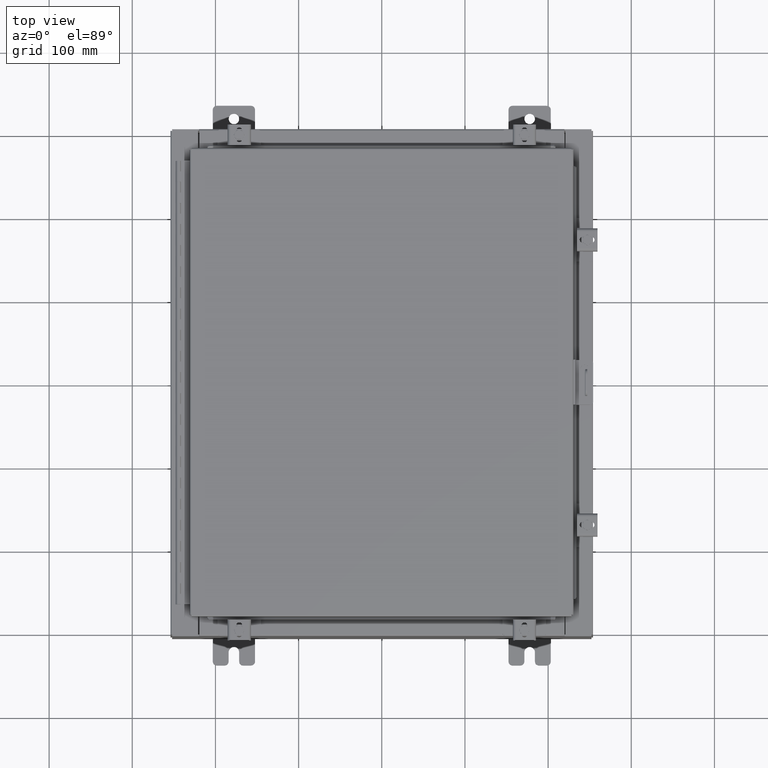
[diagram: clean part render]
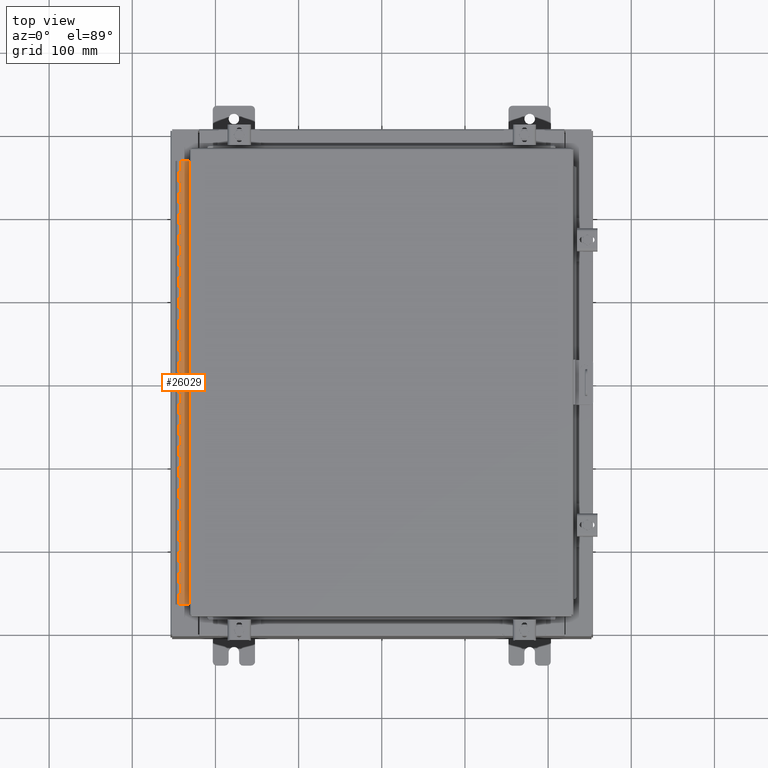
[diagram: same view with one face highlighted and labeled with its STEP entity id]
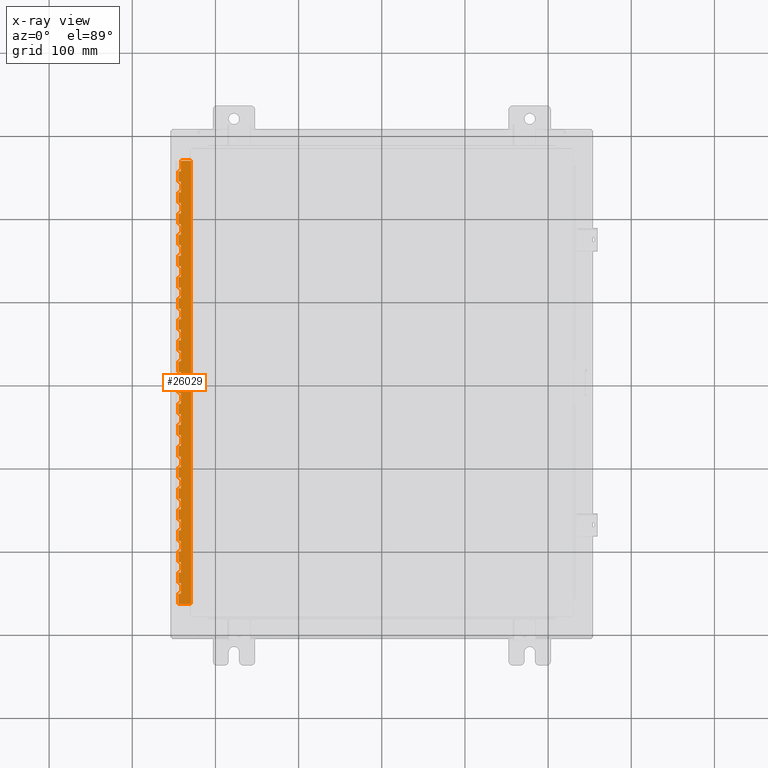
[diagram: x-ray of the same camera — body ghosted, the highlighted face saturated]
A machine part, top view. The second image highlights one B-rep face of the part: STEP entity #26029.
The next image is the same camera in x-ray: the body ghosted, the highlighted face saturated — about 0% of this face is hidden behind the body in this view.
In plain terms, the highlighted planar face has unit normal (-0, -0, 1).
Its self-contained STEP definition (entity closure, byte-faithful):
#103 = DIRECTION ( 'NONE',  ( 0.0000000000000000000, 0.0000000000000000000, 1.000000000000000000 ) ) ;
#155 = VECTOR ( 'NONE', #21715, 39.37007874015748100 ) ;
#177 = VERTEX_POINT ( 'NONE', #19928 ) ;
#197 = CARTESIAN_POINT ( 'NONE',  ( -0.6869999999999982800, 0.5504999999999997700, -1.499999999999999800 ) ) ;
#227 = ORIENTED_EDGE ( 'NONE', *, *, #23551, .F. ) ;
#271 = CARTESIAN_POINT ( 'NONE',  ( -0.6869999999999978300, 0.6754999999999996600, -21.00000000000000000 ) ) ;
#292 = CARTESIAN_POINT ( 'NONE',  ( -0.6869999999999978300, 0.6754999999999996600, -21.00000000000000000 ) ) ;
#294 = ORIENTED_EDGE ( 'NONE', *, *, #26899, .F. ) ;
#338 = DIRECTION ( 'NONE',  ( 3.389037039080723100E-015, 1.000000000000000000, -0.0000000000000000000 ) ) ;
#473 = VERTEX_POINT ( 'NONE', #8911 ) ;
#476 = EDGE_CURVE ( 'NONE', #27249, #29957, #27315, .T. ) ;
#521 = DIRECTION ( 'NONE',  ( 3.389037039080723100E-015, 1.000000000000000000, -0.0000000000000000000 ) ) ;
#579 = CARTESIAN_POINT ( 'NONE',  ( -0.6869999999999982800, 0.5504999999999997700, -6.499999999999999100 ) ) ;
#584 = LINE ( 'NONE', #12145, #1331 ) ;
#655 = EDGE_CURVE ( 'NONE', #24207, #15275, #23053, .T. ) ;
#741 = CARTESIAN_POINT ( 'NONE',  ( -0.6869999999999982800, 0.5504999999999997700, -8.500000000000000000 ) ) ;
#754 = CARTESIAN_POINT ( 'NONE',  ( -0.6869999999999998300, 0.07549999999999991400, -21.00000000000000000 ) ) ;
#755 = DIRECTION ( 'NONE',  ( 0.0000000000000000000, -0.0000000000000000000, -1.000000000000000000 ) ) ;
#764 = ORIENTED_EDGE ( 'NONE', *, *, #11160, .F. ) ;
#861 = CARTESIAN_POINT ( 'NONE',  ( -0.6870000000000022800, -0.6245000000000003900, -21.00000000000000000 ) ) ;
#899 = VECTOR ( 'NONE', #31976, 39.37007874015748100 ) ;
#901 = VECTOR ( 'NONE', #4364, 39.37007874015748100 ) ;
#905 = CARTESIAN_POINT ( 'NONE',  ( -0.6870000000000022800, -0.6245000000000003900, -21.00000000000000000 ) ) ;
#917 = CARTESIAN_POINT ( 'NONE',  ( -0.6869999999999982800, 0.5504999999999997700, -5.500000000000000000 ) ) ;
#995 = DIRECTION ( 'NONE',  ( 0.0000000000000000000, 0.0000000000000000000, 1.000000000000000000 ) ) ;
#1041 = VECTOR ( 'NONE', #4501, 39.37007874015748100 ) ;
#1044 = CARTESIAN_POINT ( 'NONE',  ( -0.6869999999999978300, 0.6754999999999996600, -12.99999999999999800 ) ) ;
#1079 = ORIENTED_EDGE ( 'NONE', *, *, #27322, .F. ) ;
#1127 = EDGE_CURVE ( 'NONE', #15758, #23292, #19465, .T. ) ;
#1142 = DIRECTION ( 'NONE',  ( 0.0000000000000000000, -0.0000000000000000000, -1.000000000000000000 ) ) ;
#1155 = CARTESIAN_POINT ( 'NONE',  ( -0.6869999999999978300, 0.6754999999999996600, -21.00000000000000000 ) ) ;
#1194 = CARTESIAN_POINT ( 'NONE',  ( -0.6869999999999973900, 0.8004999999999995500, -14.99999999999999800 ) ) ;
#1223 = CARTESIAN_POINT ( 'NONE',  ( -0.6869999999999978300, 0.6754999999999996600, 0.0000000000000000000 ) ) ;
#1296 = LINE ( 'NONE', #25357, #28090 ) ;
#1315 = VERTEX_POINT ( 'NONE', #26637 ) ;
#1331 = VECTOR ( 'NONE', #12102, 39.37007874015748100 ) ;
#1394 = VECTOR ( 'NONE', #12137, 39.37007874015748100 ) ;
#1480 = CARTESIAN_POINT ( 'NONE',  ( -0.6869999999999978300, 0.6754999999999996600, -21.00000000000000000 ) ) ;
#1504 = LINE ( 'NONE', #23699, #4052 ) ;
#1577 = DIRECTION ( 'NONE',  ( 0.0000000000000000000, 0.0000000000000000000, 1.000000000000000000 ) ) ;
#1624 = CARTESIAN_POINT ( 'NONE',  ( -0.6869999999999982800, 0.5504999999999997700, -21.00000000000000000 ) ) ;
#1808 = EDGE_CURVE ( 'NONE', #30651, #2027, #14689, .T. ) ;
#1827 = DIRECTION ( 'NONE',  ( 0.0000000000000000000, 0.0000000000000000000, 1.000000000000000000 ) ) ;
#1835 = DIRECTION ( 'NONE',  ( -3.389037039080723100E-015, -1.000000000000000000, 0.0000000000000000000 ) ) ;
#1843 = CARTESIAN_POINT ( 'NONE',  ( -0.6869999999999982800, 0.5504999999999997700, -10.50000000000000000 ) ) ;
#1970 = LINE ( 'NONE', #30358, #6411 ) ;
#1983 = ORIENTED_EDGE ( 'NONE', *, *, #18855, .F. ) ;
#2001 = VECTOR ( 'NONE', #30771, 39.37007874015748100 ) ;
#2027 = VERTEX_POINT ( 'NONE', #28097 ) ;
#2119 = VERTEX_POINT ( 'NONE', #26179 ) ;
#2218 = CARTESIAN_POINT ( 'NONE',  ( -0.6869999999999982800, 0.5504999999999997700, -6.499999999999999100 ) ) ;
#2259 = CARTESIAN_POINT ( 'NONE',  ( -0.6869999999999998300, 0.07549999999999991400, 0.0000000000000000000 ) ) ;
#2388 = VERTEX_POINT ( 'NONE', #32848 ) ;
#2395 = LINE ( 'NONE', #22267, #15820 ) ;
#2396 = LINE ( 'NONE', #24946, #10252 ) ;
#2429 = ORIENTED_EDGE ( 'NONE', *, *, #17257, .F. ) ;
#2489 = VECTOR ( 'NONE', #28837, 39.37007874015748100 ) ;
#2554 = ORIENTED_EDGE ( 'NONE', *, *, #13173, .T. ) ;
#2556 = CARTESIAN_POINT ( 'NONE',  ( -0.6869999999999978300, 0.6754999999999996600, -3.500000000000000000 ) ) ;
#2570 = VECTOR ( 'NONE', #22518, 39.37007874015748100 ) ;
#2625 = VERTEX_POINT ( 'NONE', #20589 ) ;
#2671 = VECTOR ( 'NONE', #28853, 39.37007874015748100 ) ;
#2811 = ORIENTED_EDGE ( 'NONE', *, *, #16131, .T. ) ;
#2874 = LINE ( 'NONE', #5028, #155 ) ;
#2909 = CARTESIAN_POINT ( 'NONE',  ( -0.6869999999999982800, 0.5504999999999997700, -18.50000000000000000 ) ) ;
#2913 = ORIENTED_EDGE ( 'NONE', *, *, #7661, .F. ) ;
#3035 = CARTESIAN_POINT ( 'NONE',  ( -0.6869999999999973900, 0.8004999999999995500, -5.000000000000000000 ) ) ;
#3039 = VERTEX_POINT ( 'NONE', #3406 ) ;
#3114 = VERTEX_POINT ( 'NONE', #30404 ) ;
#3137 = DIRECTION ( 'NONE',  ( 0.0000000000000000000, 0.0000000000000000000, 1.000000000000000000 ) ) ;
#3182 = VERTEX_POINT ( 'NONE', #197 ) ;
#3252 = ORIENTED_EDGE ( 'NONE', *, *, #13641, .T. ) ;
#3406 = CARTESIAN_POINT ( 'NONE',  ( -0.6869999999999982800, 0.5504999999999997700, -12.49999999999999800 ) ) ;
#3452 = VERTEX_POINT ( 'NONE', #18357 ) ;
#3458 = LINE ( 'NONE', #30522, #16058 ) ;
#3484 = DIRECTION ( 'NONE',  ( 0.0000000000000000000, 0.0000000000000000000, 1.000000000000000000 ) ) ;
#3485 = VERTEX_POINT ( 'NONE', #7197 ) ;
#3496 = CARTESIAN_POINT ( 'NONE',  ( -0.6869999999999973900, 0.8004999999999995500, -10.00000000000000000 ) ) ;
#3526 = VECTOR ( 'NONE', #11968, 39.37007874015748100 ) ;
#3589 = ORIENTED_EDGE ( 'NONE', *, *, #9829, .T. ) ;
#3774 = LINE ( 'NONE', #15727, #10103 ) ;
#3916 = DIRECTION ( 'NONE',  ( 0.0000000000000000000, -0.0000000000000000000, -1.000000000000000000 ) ) ;
#3956 = LINE ( 'NONE', #29157, #1041 ) ;
#3970 = VECTOR ( 'NONE', #24214, 39.37007874015748100 ) ;
#3996 = LINE ( 'NONE', #18540, #17862 ) ;
#4032 = CARTESIAN_POINT ( 'NONE',  ( -0.6869999999999982800, 0.5504999999999997700, -19.50000000000000000 ) ) ;
#4052 = VECTOR ( 'NONE', #10480, 39.37007874015748100 ) ;
#4106 = LINE ( 'NONE', #8319, #20891 ) ;
#4198 = ORIENTED_EDGE ( 'NONE', *, *, #26488, .F. ) ;
#4339 = DIRECTION ( 'NONE',  ( 0.0000000000000000000, 0.0000000000000000000, 1.000000000000000000 ) ) ;
#4364 = DIRECTION ( 'NONE',  ( 3.389037039080723100E-015, 1.000000000000000000, -0.0000000000000000000 ) ) ;
#4424 = ORIENTED_EDGE ( 'NONE', *, *, #32511, .T. ) ;
#4501 = DIRECTION ( 'NONE',  ( 0.0000000000000000000, 0.0000000000000000000, 1.000000000000000000 ) ) ;
#4553 = VERTEX_POINT ( 'NONE', #20087 ) ;
#4615 = EDGE_CURVE ( 'NONE', #24120, #7231, #8847, .T. ) ;
#4660 = VECTOR ( 'NONE', #7715, 39.37007874015748100 ) ;
#4751 = VECTOR ( 'NONE', #17650, 39.37007874015748100 ) ;
#4775 = CARTESIAN_POINT ( 'NONE',  ( -0.6869999999999978300, 0.6754999999999996600, -16.50000000000000000 ) ) ;
#4901 = ORIENTED_EDGE ( 'NONE', *, *, #8170, .F. ) ;
#4940 = VERTEX_POINT ( 'NONE', #20583 ) ;
#4946 = LINE ( 'NONE', #1194, #9998 ) ;
#4969 = LINE ( 'NONE', #29337, #4660 ) ;
#5028 = CARTESIAN_POINT ( 'NONE',  ( -0.6869999999999973900, 0.8004999999999995500, -17.00000000000000000 ) ) ;
#5088 = VERTEX_POINT ( 'NONE', #6546 ) ;
#5136 = VECTOR ( 'NONE', #31008, 39.37007874015748100 ) ;
#5153 = VERTEX_POINT ( 'NONE', #28402 ) ;
#5328 = LINE ( 'NONE', #19929, #18150 ) ;
#5429 = CARTESIAN_POINT ( 'NONE',  ( -0.6869999999999978300, 0.6754999999999996600, -14.99999999999999800 ) ) ;
#5547 = DIRECTION ( 'NONE',  ( 3.389037039080723100E-015, 1.000000000000000000, -0.0000000000000000000 ) ) ;
#5668 = LINE ( 'NONE', #19227, #8849 ) ;
#5683 = CARTESIAN_POINT ( 'NONE',  ( -0.6869999999999973900, 0.8004999999999995500, -8.000000000000000000 ) ) ;
#5707 = DIRECTION ( 'NONE',  ( 3.389037039080723100E-015, 1.000000000000000000, -0.0000000000000000000 ) ) ;
#5772 = LINE ( 'NONE', #19001, #23694 ) ;
#5774 = ORIENTED_EDGE ( 'NONE', *, *, #11699, .F. ) ;
#5868 = ORIENTED_EDGE ( 'NONE', *, *, #17879, .F. ) ;
#5882 = CARTESIAN_POINT ( 'NONE',  ( -0.6869999999999973900, 0.8004999999999995500, -20.00000000000000000 ) ) ;
#5957 = CARTESIAN_POINT ( 'NONE',  ( -0.6869999999999978300, 0.6754999999999996600, -14.49999999999999800 ) ) ;
#5995 = ORIENTED_EDGE ( 'NONE', *, *, #476, .T. ) ;
#6089 = CARTESIAN_POINT ( 'NONE',  ( -0.6869999999999978300, 0.6754999999999996600, -21.00000000000000000 ) ) ;
#6123 = LINE ( 'NONE', #1155, #11992 ) ;
#6152 = VERTEX_POINT ( 'NONE', #14431 ) ;
#6319 = VERTEX_POINT ( 'NONE', #15531 ) ;
#6376 = EDGE_CURVE ( 'NONE', #20230, #24756, #28969, .T. ) ;
#6407 = CARTESIAN_POINT ( 'NONE',  ( -0.6869999999999978300, 0.6754999999999996600, -6.000000000000000900 ) ) ;
#6411 = VECTOR ( 'NONE', #5707, 39.37007874015748100 ) ;
#6546 = CARTESIAN_POINT ( 'NONE',  ( -0.6869999999999978300, 0.6754999999999996600, -17.99999999999999600 ) ) ;
#6556 = VERTEX_POINT ( 'NONE', #1223 ) ;
#6694 = CARTESIAN_POINT ( 'NONE',  ( -0.6869999999999982800, 0.5504999999999997700, -8.000000000000000000 ) ) ;
#6740 = VECTOR ( 'NONE', #28791, 39.37007874015748100 ) ;
#7035 = DIRECTION ( 'NONE',  ( 0.0000000000000000000, -0.0000000000000000000, -1.000000000000000000 ) ) ;
#7055 = EDGE_CURVE ( 'NONE', #11393, #6152, #29419, .T. ) ;
#7059 = CARTESIAN_POINT ( 'NONE',  ( -0.6869999999999978300, 0.6754999999999996600, -5.500000000000000000 ) ) ;
#7067 = VECTOR ( 'NONE', #28575, 39.37007874015748100 ) ;
#7070 = ORIENTED_EDGE ( 'NONE', *, *, #26441, .F. ) ;
#7089 = VECTOR ( 'NONE', #24545, 39.37007874015748100 ) ;
#7104 = LINE ( 'NONE', #15929, #12297 ) ;
#7197 = CARTESIAN_POINT ( 'NONE',  ( -0.6869999999999978300, 0.6754999999999996600, -11.50000000000000000 ) ) ;
#7224 = VERTEX_POINT ( 'NONE', #23065 ) ;
#7231 = VERTEX_POINT ( 'NONE', #19324 ) ;
#7246 = ORIENTED_EDGE ( 'NONE', *, *, #655, .T. ) ;
#7273 = DIRECTION ( 'NONE',  ( 3.369016658928398200E-015, 1.000000000000000000, 0.0000000000000000000 ) ) ;
#7318 = ORIENTED_EDGE ( 'NONE', *, *, #11862, .F. ) ;
#7372 = CARTESIAN_POINT ( 'NONE',  ( -0.6869999999999982800, 0.5504999999999997700, -11.99999999999999800 ) ) ;
#7380 = CARTESIAN_POINT ( 'NONE',  ( -0.6869999999999978300, 0.6754999999999996600, -21.00000000000000000 ) ) ;
#7413 = VERTEX_POINT ( 'NONE', #18842 ) ;
#7445 = VERTEX_POINT ( 'NONE', #12876 ) ;
#7452 = CARTESIAN_POINT ( 'NONE',  ( -0.6869999999999978300, 0.6754999999999996600, -9.000000000000000000 ) ) ;
#7530 = DIRECTION ( 'NONE',  ( 0.0000000000000000000, -0.0000000000000000000, -1.000000000000000000 ) ) ;
#7661 = EDGE_CURVE ( 'NONE', #8018, #22218, #30250, .T. ) ;
#7715 = DIRECTION ( 'NONE',  ( 0.0000000000000000000, 0.0000000000000000000, 1.000000000000000000 ) ) ;
#7733 = EDGE_CURVE ( 'NONE', #2625, #177, #28663, .T. ) ;
#7749 = VECTOR ( 'NONE', #15839, 39.37007874015748100 ) ;
#7819 = VECTOR ( 'NONE', #27204, 39.37007874015748100 ) ;
#7854 = VERTEX_POINT ( 'NONE', #4775 ) ;
#7940 = ORIENTED_EDGE ( 'NONE', *, *, #29884, .F. ) ;
#7958 = ORIENTED_EDGE ( 'NONE', *, *, #15445, .T. ) ;
#8009 = CARTESIAN_POINT ( 'NONE',  ( -0.6869999999999978300, 0.6754999999999996600, -21.00000000000000000 ) ) ;
#8010 = ORIENTED_EDGE ( 'NONE', *, *, #16585, .T. ) ;
#8018 = VERTEX_POINT ( 'NONE', #2218 ) ;
#8038 = CARTESIAN_POINT ( 'NONE',  ( -0.6869999999999982800, 0.5504999999999997700, -9.500000000000000000 ) ) ;
#8104 = CARTESIAN_POINT ( 'NONE',  ( -0.6869999999999978300, 0.6754999999999996600, -21.00000000000000000 ) ) ;
#8129 = EDGE_CURVE ( 'NONE', #32894, #2027, #31461, .T. ) ;
#8170 = EDGE_CURVE ( 'NONE', #7413, #9553, #9248, .T. ) ;
#8194 = VERTEX_POINT ( 'NONE', #1843 ) ;
#8198 = CARTESIAN_POINT ( 'NONE',  ( -0.6869999999999973900, 0.8004999999999995500, -4.000000000000000000 ) ) ;
#8229 = EDGE_CURVE ( 'NONE', #28632, #23440, #3956, .T. ) ;
#8232 = ORIENTED_EDGE ( 'NONE', *, *, #12887, .F. ) ;
#8319 = CARTESIAN_POINT ( 'NONE',  ( -0.6869999999999978300, 0.6754999999999996600, -21.00000000000000000 ) ) ;
#8548 = ORIENTED_EDGE ( 'NONE', *, *, #22570, .F. ) ;
#8570 = EDGE_CURVE ( 'NONE', #9468, #22621, #2395, .T. ) ;
#8594 = EDGE_CURVE ( 'NONE', #7231, #32486, #5668, .T. ) ;
#8666 = DIRECTION ( 'NONE',  ( 0.0000000000000000000, -0.0000000000000000000, -1.000000000000000000 ) ) ;
#8773 = CARTESIAN_POINT ( 'NONE',  ( -0.6869999999999982800, 0.5504999999999997700, -12.99999999999999800 ) ) ;
#8805 = CARTESIAN_POINT ( 'NONE',  ( -0.6869999999999978300, 0.6754999999999996600, -10.50000000000000000 ) ) ;
#8847 = LINE ( 'NONE', #14289, #32079 ) ;
#8849 = VECTOR ( 'NONE', #20881, 39.37007874015748100 ) ;
#8898 = DIRECTION ( 'NONE',  ( 3.389037039080723100E-015, 1.000000000000000000, -0.0000000000000000000 ) ) ;
#8911 = CARTESIAN_POINT ( 'NONE',  ( -0.6869999999999982800, 0.5504999999999997700, -14.49999999999999800 ) ) ;
#8975 = ORIENTED_EDGE ( 'NONE', *, *, #26113, .F. ) ;
#9037 = LINE ( 'NONE', #8104, #25918 ) ;
#9058 = ORIENTED_EDGE ( 'NONE', *, *, #4615, .F. ) ;
#9241 = VERTEX_POINT ( 'NONE', #1624 ) ;
#9248 = LINE ( 'NONE', #917, #29546 ) ;
#9256 = CARTESIAN_POINT ( 'NONE',  ( -0.6869999999999982800, 0.5504999999999997700, -7.499999999999999100 ) ) ;
#9427 = ORIENTED_EDGE ( 'NONE', *, *, #26851, .F. ) ;
#9468 = VERTEX_POINT ( 'NONE', #32094 ) ;
#9553 = VERTEX_POINT ( 'NONE', #16702 ) ;
#9672 = CARTESIAN_POINT ( 'NONE',  ( -0.6869999999999982800, 0.5504999999999997700, -13.50000000000000000 ) ) ;
#9689 = EDGE_CURVE ( 'NONE', #30834, #5088, #6123, .T. ) ;
#9701 = VECTOR ( 'NONE', #30951, 39.37007874015748100 ) ;
#9714 = VERTEX_POINT ( 'NONE', #754 ) ;
#9829 = EDGE_CURVE ( 'NONE', #14590, #27558, #16048, .T. ) ;
#9856 = VECTOR ( 'NONE', #17283, 39.37007874015748100 ) ;
#9864 = EDGE_CURVE ( 'NONE', #15526, #4940, #22561, .T. ) ;
#9898 = VERTEX_POINT ( 'NONE', #13029 ) ;
#9899 = LINE ( 'NONE', #8198, #31590 ) ;
#9943 = VECTOR ( 'NONE', #10141, 39.37007874015748100 ) ;
#9998 = VECTOR ( 'NONE', #26348, 39.37007874015748100 ) ;
#10034 = EDGE_CURVE ( 'NONE', #31901, #15179, #22475, .T. ) ;
#10103 = VECTOR ( 'NONE', #26129, 39.37007874015748100 ) ;
#10141 = DIRECTION ( 'NONE',  ( 0.0000000000000000000, -0.0000000000000000000, -1.000000000000000000 ) ) ;
#10252 = VECTOR ( 'NONE', #16019, 39.37007874015748100 ) ;
#10273 = VERTEX_POINT ( 'NONE', #22455 ) ;
#10362 = ORIENTED_EDGE ( 'NONE', *, *, #17196, .T. ) ;
#10393 = CARTESIAN_POINT ( 'NONE',  ( -0.6869999999999973900, 0.8004999999999995500, -3.500000000000000000 ) ) ;
#10437 = DIRECTION ( 'NONE',  ( -3.389037039080723100E-015, -1.000000000000000000, 0.0000000000000000000 ) ) ;
#10480 = DIRECTION ( 'NONE',  ( -3.389037039080723100E-015, -1.000000000000000000, 0.0000000000000000000 ) ) ;
#10582 = LINE ( 'NONE', #2909, #7749 ) ;
#10644 = LINE ( 'NONE', #24612, #30208 ) ;
#10683 = EDGE_CURVE ( 'NONE', #26767, #28218, #4106, .T. ) ;
#10697 = CARTESIAN_POINT ( 'NONE',  ( -0.6869999999999982800, 0.5504999999999997700, -19.50000000000000000 ) ) ;
#10715 = CARTESIAN_POINT ( 'NONE',  ( -0.6869999999999982800, 0.5504999999999997700, -0.5000000000000000000 ) ) ;
#10738 = LINE ( 'NONE', #15128, #7089 ) ;
#10769 = CARTESIAN_POINT ( 'NONE',  ( -0.6869999999999982800, 0.5504999999999997700, -2.000000000000000000 ) ) ;
#10786 = DIRECTION ( 'NONE',  ( -3.389037039080723100E-015, -1.000000000000000000, 0.0000000000000000000 ) ) ;
#10952 = VERTEX_POINT ( 'NONE', #24204 ) ;
#11077 = EDGE_CURVE ( 'NONE', #31341, #31901, #24258, .T. ) ;
#11118 = FACE_OUTER_BOUND ( 'NONE', #30109, .T. ) ;
#11120 = CARTESIAN_POINT ( 'NONE',  ( -0.6869999999999982800, 0.5504999999999997700, -7.000000000000000000 ) ) ;
#11131 = CARTESIAN_POINT ( 'NONE',  ( -0.6869999999999973900, 0.8004999999999995500, -14.49999999999999800 ) ) ;
#11160 = EDGE_CURVE ( 'NONE', #7224, #21249, #11725, .T. ) ;
#11191 = EDGE_CURVE ( 'NONE', #7445, #4940, #12824, .T. ) ;
#11253 = CARTESIAN_POINT ( 'NONE',  ( -0.6869999999999978300, 0.6754999999999996600, -0.5000000000000000000 ) ) ;
#11277 = CARTESIAN_POINT ( 'NONE',  ( -0.6869999999999978300, 0.6754999999999996600, -2.000000000000000000 ) ) ;
#11296 = CARTESIAN_POINT ( 'NONE',  ( -0.6869999999999978300, 0.6754999999999996600, -21.00000000000000000 ) ) ;
#11300 = CARTESIAN_POINT ( 'NONE',  ( -0.6869999999999982800, 0.5504999999999997700, -2.999999999999999600 ) ) ;
#11340 = DIRECTION ( 'NONE',  ( -3.389037039080723100E-015, -1.000000000000000000, 0.0000000000000000000 ) ) ;
#11393 = VERTEX_POINT ( 'NONE', #11253 ) ;
#11515 = LINE ( 'NONE', #15216, #21712 ) ;
#11535 = VECTOR ( 'NONE', #28950, 39.37007874015748100 ) ;
#11618 = VECTOR ( 'NONE', #13843, 39.37007874015748100 ) ;
#11621 = ORIENTED_EDGE ( 'NONE', *, *, #8570, .F. ) ;
#11673 = DIRECTION ( 'NONE',  ( 0.0000000000000000000, -0.0000000000000000000, -1.000000000000000000 ) ) ;
#11699 = EDGE_CURVE ( 'NONE', #30834, #20739, #15096, .T. ) ;
#11725 = LINE ( 'NONE', #12988, #30721 ) ;
#11767 = CARTESIAN_POINT ( 'NONE',  ( -0.6869999999999978300, 0.6754999999999996600, -21.00000000000000000 ) ) ;
#11805 = LINE ( 'NONE', #22158, #9701 ) ;
#11838 = LINE ( 'NONE', #32399, #25117 ) ;
#11862 = EDGE_CURVE ( 'NONE', #13922, #8194, #30168, .T. ) ;
#11964 = VERTEX_POINT ( 'NONE', #2259 ) ;
#11968 = DIRECTION ( 'NONE',  ( 0.0000000000000000000, -0.0000000000000000000, -1.000000000000000000 ) ) ;
#11992 = VECTOR ( 'NONE', #995, 39.37007874015748100 ) ;
#12012 = ORIENTED_EDGE ( 'NONE', *, *, #20288, .F. ) ;
#12051 = EDGE_CURVE ( 'NONE', #3182, #27363, #32962, .T. ) ;
#12102 = DIRECTION ( 'NONE',  ( -3.389037039080723100E-015, -1.000000000000000000, 0.0000000000000000000 ) ) ;
#12116 = EDGE_CURVE ( 'NONE', #9714, #11964, #25267, .T. ) ;
#12137 = DIRECTION ( 'NONE',  ( -3.389037039080723100E-015, -1.000000000000000000, 0.0000000000000000000 ) ) ;
#12145 = CARTESIAN_POINT ( 'NONE',  ( -0.6869999999999973900, 0.8004999999999995500, -15.50000000000000000 ) ) ;
#12270 = EDGE_CURVE ( 'NONE', #22621, #15275, #23677, .T. ) ;
#12291 = ORIENTED_EDGE ( 'NONE', *, *, #12699, .F. ) ;
#12297 = VECTOR ( 'NONE', #32332, 39.37007874015748100 ) ;
#12312 = ORIENTED_EDGE ( 'NONE', *, *, #20913, .T. ) ;
#12341 = LINE ( 'NONE', #7380, #13316 ) ;
#12394 = ORIENTED_EDGE ( 'NONE', *, *, #30732, .F. ) ;
#12423 = CARTESIAN_POINT ( 'NONE',  ( -0.6869999999999978300, 0.6754999999999996600, -11.99999999999999800 ) ) ;
#12490 = EDGE_CURVE ( 'NONE', #6152, #32894, #14109, .T. ) ;
#12617 = VECTOR ( 'NONE', #31266, 39.37007874015748100 ) ;
#12697 = VERTEX_POINT ( 'NONE', #30515 ) ;
#12699 = EDGE_CURVE ( 'NONE', #16104, #9468, #15927, .T. ) ;
#12824 = LINE ( 'NONE', #30616, #30601 ) ;
#12876 = CARTESIAN_POINT ( 'NONE',  ( -0.6869999999999978300, 0.6754999999999996600, -19.50000000000000000 ) ) ;
#12887 = EDGE_CURVE ( 'NONE', #11964, #6556, #11515, .T. ) ;
#12988 = CARTESIAN_POINT ( 'NONE',  ( -0.6869999999999982800, 0.5504999999999997700, -2.500000000000000000 ) ) ;
#13029 = CARTESIAN_POINT ( 'NONE',  ( -0.6869999999999978300, 0.6754999999999996600, -7.499999999999999100 ) ) ;
#13080 = AXIS2_PLACEMENT_3D ( 'NONE', #905, #14920, #30113 ) ;
#13157 = VERTEX_POINT ( 'NONE', #19214 ) ;
#13173 = EDGE_CURVE ( 'NONE', #5153, #13947, #3996, .T. ) ;
#13238 = VECTOR ( 'NONE', #20018, 39.37007874015748100 ) ;
#13294 = CARTESIAN_POINT ( 'NONE',  ( -0.6869999999999973900, 0.8004999999999995500, -9.500000000000000000 ) ) ;
#13316 = VECTOR ( 'NONE', #26916, 39.37007874015748100 ) ;
#13327 = CARTESIAN_POINT ( 'NONE',  ( -0.6869999999999973900, 0.8004999999999995500, -6.499999999999999100 ) ) ;
#13349 = CARTESIAN_POINT ( 'NONE',  ( -0.6869999999999978300, 0.6754999999999996600, -20.00000000000000000 ) ) ;
#13523 = VERTEX_POINT ( 'NONE', #16175 ) ;
#13533 = LINE ( 'NONE', #19281, #15119 ) ;
#13580 = EDGE_CURVE ( 'NONE', #29941, #12697, #5772, .T. ) ;
#13641 = EDGE_CURVE ( 'NONE', #3114, #13767, #23318, .T. ) ;
#13712 = DIRECTION ( 'NONE',  ( 3.389037039080723100E-015, 1.000000000000000000, -0.0000000000000000000 ) ) ;
#13767 = VERTEX_POINT ( 'NONE', #6407 ) ;
#13843 = DIRECTION ( 'NONE',  ( -3.389037039080723100E-015, -1.000000000000000000, 0.0000000000000000000 ) ) ;
#13872 = ORIENTED_EDGE ( 'NONE', *, *, #29246, .F. ) ;
#13920 = VECTOR ( 'NONE', #18903, 39.37007874015748100 ) ;
#13922 = VERTEX_POINT ( 'NONE', #8805 ) ;
#13947 = VERTEX_POINT ( 'NONE', #13349 ) ;
#13973 = CARTESIAN_POINT ( 'NONE',  ( -0.6869999999999978300, 0.6754999999999996600, -21.00000000000000000 ) ) ;
#14047 = CARTESIAN_POINT ( 'NONE',  ( -0.6869999999999982800, 0.5504999999999997700, -14.49999999999999800 ) ) ;
#14105 = DIRECTION ( 'NONE',  ( 0.0000000000000000000, -0.0000000000000000000, -1.000000000000000000 ) ) ;
#14109 = LINE ( 'NONE', #10715, #17330 ) ;
#14141 = CARTESIAN_POINT ( 'NONE',  ( -0.6869999999999982800, 0.5504999999999997700, -7.499999999999999100 ) ) ;
#14189 = CARTESIAN_POINT ( 'NONE',  ( -0.6869999999999973900, 0.8004999999999995500, -10.50000000000000000 ) ) ;
#14289 = CARTESIAN_POINT ( 'NONE',  ( -0.6869999999999982800, 0.5504999999999997700, -8.500000000000000000 ) ) ;
#14308 = ORIENTED_EDGE ( 'NONE', *, *, #28931, .F. ) ;
#14431 = CARTESIAN_POINT ( 'NONE',  ( -0.6869999999999982800, 0.5504999999999997700, -0.5000000000000000000 ) ) ;
#14473 = LINE ( 'NONE', #11767, #28383 ) ;
#14590 = VERTEX_POINT ( 'NONE', #25346 ) ;
#14601 = ORIENTED_EDGE ( 'NONE', *, *, #26061, .F. ) ;
#14619 = ORIENTED_EDGE ( 'NONE', *, *, #22465, .F. ) ;
#14689 = LINE ( 'NONE', #8009, #26089 ) ;
#14861 = EDGE_CURVE ( 'NONE', #7854, #13157, #11805, .T. ) ;
#14903 = EDGE_CURVE ( 'NONE', #14590, #25735, #3774, .T. ) ;
#14920 = DIRECTION ( 'NONE',  ( 1.000000000000000000, -3.369016658928398200E-015, 0.0000000000000000000 ) ) ;
#14991 = DIRECTION ( 'NONE',  ( 3.389037039080723100E-015, 1.000000000000000000, -0.0000000000000000000 ) ) ;
#15091 = EDGE_CURVE ( 'NONE', #27363, #28028, #10644, .T. ) ;
#15096 = LINE ( 'NONE', #32864, #20733 ) ;
#15098 = LINE ( 'NONE', #20925, #3970 ) ;
#15119 = VECTOR ( 'NONE', #22376, 39.37007874015748100 ) ;
#15128 = CARTESIAN_POINT ( 'NONE',  ( -0.6869999999999973900, 0.8004999999999995500, -20.50000000000000400 ) ) ;
#15179 = VERTEX_POINT ( 'NONE', #15357 ) ;
#15216 = CARTESIAN_POINT ( 'NONE',  ( -0.6870000000000022800, -0.6245000000000003900, 0.0000000000000000000 ) ) ;
#15229 = VERTEX_POINT ( 'NONE', #22443 ) ;
#15275 = VERTEX_POINT ( 'NONE', #27438 ) ;
#15320 = DIRECTION ( 'NONE',  ( -3.389037039080723100E-015, -1.000000000000000000, 0.0000000000000000000 ) ) ;
#15357 = CARTESIAN_POINT ( 'NONE',  ( -0.6869999999999982800, 0.5504999999999997700, -4.000000000000000000 ) ) ;
#15445 = EDGE_CURVE ( 'NONE', #13922, #177, #16740, .T. ) ;
#15474 = ORIENTED_EDGE ( 'NONE', *, *, #27809, .F. ) ;
#15503 = CARTESIAN_POINT ( 'NONE',  ( -0.6869999999999973900, 0.8004999999999995500, -7.499999999999999100 ) ) ;
#15526 = VERTEX_POINT ( 'NONE', #32125 ) ;
#15531 = CARTESIAN_POINT ( 'NONE',  ( -0.6869999999999982800, 0.5504999999999997700, -9.500000000000000000 ) ) ;
#15550 = EDGE_CURVE ( 'NONE', #21568, #13157, #11838, .T. ) ;
#15560 = ORIENTED_EDGE ( 'NONE', *, *, #1127, .F. ) ;
#15585 = DIRECTION ( 'NONE',  ( 3.389037039080723100E-015, 1.000000000000000000, -0.0000000000000000000 ) ) ;
#15603 = CARTESIAN_POINT ( 'NONE',  ( -0.6869999999999973900, 0.8004999999999995500, -11.99999999999999800 ) ) ;
#15663 = LINE ( 'NONE', #271, #28318 ) ;
#15727 = CARTESIAN_POINT ( 'NONE',  ( -0.6869999999999973900, 0.8004999999999995500, -17.50000000000000000 ) ) ;
#15758 = VERTEX_POINT ( 'NONE', #7372 ) ;
#15820 = VECTOR ( 'NONE', #26188, 39.37007874015748100 ) ;
#15835 = CARTESIAN_POINT ( 'NONE',  ( -0.6869999999999982800, 0.5504999999999997700, -13.50000000000000000 ) ) ;
#15839 = DIRECTION ( 'NONE',  ( 0.0000000000000000000, -0.0000000000000000000, -1.000000000000000000 ) ) ;
#15914 = DIRECTION ( 'NONE',  ( 3.389037039080723100E-015, 1.000000000000000000, -0.0000000000000000000 ) ) ;
#15927 = LINE ( 'NONE', #29249, #5136 ) ;
#15929 = CARTESIAN_POINT ( 'NONE',  ( -0.6869999999999973900, 0.8004999999999995500, -19.50000000000000000 ) ) ;
#16019 = DIRECTION ( 'NONE',  ( -3.389037039080723100E-015, -1.000000000000000000, 0.0000000000000000000 ) ) ;
#16048 = LINE ( 'NONE', #23799, #19302 ) ;
#16058 = VECTOR ( 'NONE', #7035, 39.37007874015748100 ) ;
#16104 = VERTEX_POINT ( 'NONE', #19140 ) ;
#16131 = EDGE_CURVE ( 'NONE', #9898, #30243, #23620, .T. ) ;
#16175 = CARTESIAN_POINT ( 'NONE',  ( -0.6869999999999978300, 0.6754999999999996600, -14.00000000000000000 ) ) ;
#16200 = DIRECTION ( 'NONE',  ( 3.389037039080723100E-015, 1.000000000000000000, -0.0000000000000000000 ) ) ;
#16299 = LINE ( 'NONE', #28146, #23099 ) ;
#16362 = EDGE_CURVE ( 'NONE', #30651, #3182, #1296, .T. ) ;
#16450 = VECTOR ( 'NONE', #16200, 39.37007874015748100 ) ;
#16585 = EDGE_CURVE ( 'NONE', #24361, #23292, #14473, .T. ) ;
#16642 = ORIENTED_EDGE ( 'NONE', *, *, #23223, .F. ) ;
#16647 = EDGE_CURVE ( 'NONE', #30523, #13523, #15663, .T. ) ;
#16656 = LINE ( 'NONE', #24145, #32805 ) ;
#16702 = CARTESIAN_POINT ( 'NONE',  ( -0.6869999999999982800, 0.5504999999999997700, -6.000000000000000900 ) ) ;
#16740 = LINE ( 'NONE', #27311, #19404 ) ;
#16769 = DIRECTION ( 'NONE',  ( 3.369016658928398200E-015, 1.000000000000000000, 0.0000000000000000000 ) ) ;
#16865 = EDGE_CURVE ( 'NONE', #3485, #32636, #4969, .T. ) ;
#16881 = LINE ( 'NONE', #4032, #11535 ) ;
#16960 = CARTESIAN_POINT ( 'NONE',  ( -0.6869999999999978300, 0.6754999999999996600, -15.50000000000000000 ) ) ;
#16987 = DIRECTION ( 'NONE',  ( 0.0000000000000000000, -0.0000000000000000000, -1.000000000000000000 ) ) ;
#17196 = EDGE_CURVE ( 'NONE', #31341, #1315, #18965, .T. ) ;
#17242 = VECTOR ( 'NONE', #27544, 39.37007874015748100 ) ;
#17257 = EDGE_CURVE ( 'NONE', #24756, #28218, #25204, .T. ) ;
#17283 = DIRECTION ( 'NONE',  ( 0.0000000000000000000, 0.0000000000000000000, 1.000000000000000000 ) ) ;
#17330 = VECTOR ( 'NONE', #3916, 39.37007874015748100 ) ;
#17445 = LINE ( 'NONE', #292, #2001 ) ;
#17625 = VECTOR ( 'NONE', #26591, 39.37007874015748100 ) ;
#17650 = DIRECTION ( 'NONE',  ( -3.389037039080723100E-015, -1.000000000000000000, 0.0000000000000000000 ) ) ;
#17658 = ORIENTED_EDGE ( 'NONE', *, *, #8229, .T. ) ;
#17681 = ORIENTED_EDGE ( 'NONE', *, *, #6376, .F. ) ;
#17862 = VECTOR ( 'NONE', #25901, 39.37007874015748100 ) ;
#17879 = EDGE_CURVE ( 'NONE', #15179, #3452, #9899, .T. ) ;
#17900 = ORIENTED_EDGE ( 'NONE', *, *, #12490, .F. ) ;
#17914 = CARTESIAN_POINT ( 'NONE',  ( -0.6869999999999978300, 0.6754999999999996600, -12.49999999999999800 ) ) ;
#18103 = DIRECTION ( 'NONE',  ( 3.389037039080723100E-015, 1.000000000000000000, -0.0000000000000000000 ) ) ;
#18150 = VECTOR ( 'NONE', #14991, 39.37007874015748100 ) ;
#18357 = CARTESIAN_POINT ( 'NONE',  ( -0.6869999999999978300, 0.6754999999999996600, -4.000000000000000000 ) ) ;
#18480 = CARTESIAN_POINT ( 'NONE',  ( -0.6869999999999973900, 0.8004999999999995500, -12.99999999999999800 ) ) ;
#18540 = CARTESIAN_POINT ( 'NONE',  ( -0.6869999999999978300, 0.6754999999999996600, -21.00000000000000000 ) ) ;
#18573 = ORIENTED_EDGE ( 'NONE', *, *, #21064, .T. ) ;
#18583 = LINE ( 'NONE', #21323, #13238 ) ;
#18619 = LINE ( 'NONE', #18480, #32506 ) ;
#18634 = EDGE_CURVE ( 'NONE', #6319, #2625, #29889, .T. ) ;
#18842 = CARTESIAN_POINT ( 'NONE',  ( -0.6869999999999982800, 0.5504999999999997700, -5.500000000000000000 ) ) ;
#18847 = ORIENTED_EDGE ( 'NONE', *, *, #31826, .F. ) ;
#18855 = EDGE_CURVE ( 'NONE', #4553, #6319, #23286, .T. ) ;
#18895 = EDGE_CURVE ( 'NONE', #28632, #21691, #584, .T. ) ;
#18902 = ORIENTED_EDGE ( 'NONE', *, *, #7733, .F. ) ;
#18903 = DIRECTION ( 'NONE',  ( 0.0000000000000000000, -0.0000000000000000000, -1.000000000000000000 ) ) ;
#18931 = ORIENTED_EDGE ( 'NONE', *, *, #28825, .T. ) ;
#18965 = LINE ( 'NONE', #11296, #2489 ) ;
#19001 = CARTESIAN_POINT ( 'NONE',  ( -0.6869999999999982800, 0.5504999999999997700, -16.50000000000000000 ) ) ;
#19069 = CARTESIAN_POINT ( 'NONE',  ( -0.6869999999999973900, 0.8004999999999995500, -19.00000000000000000 ) ) ;
#19087 = VERTEX_POINT ( 'NONE', #10697 ) ;
#19140 = CARTESIAN_POINT ( 'NONE',  ( -0.6869999999999978300, 0.6754999999999996600, -4.500000000000000000 ) ) ;
#19203 = CARTESIAN_POINT ( 'NONE',  ( -0.6869999999999982800, 0.5504999999999997700, -1.499999999999999800 ) ) ;
#19214 = CARTESIAN_POINT ( 'NONE',  ( -0.6869999999999978300, 0.6754999999999996600, -16.00000000000000000 ) ) ;
#19227 = CARTESIAN_POINT ( 'NONE',  ( -0.6869999999999973900, 0.8004999999999995500, -9.000000000000000000 ) ) ;
#19281 = CARTESIAN_POINT ( 'NONE',  ( -0.6869999999999973900, 0.8004999999999995500, -11.00000000000000000 ) ) ;
#19302 = VECTOR ( 'NONE', #24892, 39.37007874015748100 ) ;
#19310 = DIRECTION ( 'NONE',  ( 3.389037039080723100E-015, 1.000000000000000000, -0.0000000000000000000 ) ) ;
#19324 = CARTESIAN_POINT ( 'NONE',  ( -0.6869999999999982800, 0.5504999999999997700, -9.000000000000000000 ) ) ;
#19388 = ORIENTED_EDGE ( 'NONE', *, *, #10034, .F. ) ;
#19404 = VECTOR ( 'NONE', #3484, 39.37007874015748100 ) ;
#19465 = LINE ( 'NONE', #15603, #901 ) ;
#19614 = CARTESIAN_POINT ( 'NONE',  ( -0.6869999999999973900, 0.8004999999999995500, -12.49999999999999800 ) ) ;
#19687 = DIRECTION ( 'NONE',  ( 3.389037039080723100E-015, 1.000000000000000000, -0.0000000000000000000 ) ) ;
#19728 = EDGE_CURVE ( 'NONE', #19087, #2119, #16881, .T. ) ;
#19729 = VECTOR ( 'NONE', #19310, 39.37007874015748100 ) ;
#19928 = CARTESIAN_POINT ( 'NONE',  ( -0.6869999999999978300, 0.6754999999999996600, -10.00000000000000000 ) ) ;
#19929 = CARTESIAN_POINT ( 'NONE',  ( -0.6869999999999973900, 0.8004999999999995500, -7.000000000000000000 ) ) ;
#20018 = DIRECTION ( 'NONE',  ( 3.389037039080723100E-015, 1.000000000000000000, -0.0000000000000000000 ) ) ;
#20087 = CARTESIAN_POINT ( 'NONE',  ( -0.6869999999999978300, 0.6754999999999996600, -9.500000000000000000 ) ) ;
#20183 = EDGE_CURVE ( 'NONE', #23585, #26617, #26376, .T. ) ;
#20230 = VERTEX_POINT ( 'NONE', #9256 ) ;
#20288 = EDGE_CURVE ( 'NONE', #25735, #27245, #3458, .T. ) ;
#20526 = ORIENTED_EDGE ( 'NONE', *, *, #25550, .F. ) ;
#20534 = LINE ( 'NONE', #30596, #13920 ) ;
#20583 = CARTESIAN_POINT ( 'NONE',  ( -0.6869999999999978300, 0.6754999999999996600, -19.00000000000000000 ) ) ;
#20589 = CARTESIAN_POINT ( 'NONE',  ( -0.6869999999999982800, 0.5504999999999997700, -10.00000000000000000 ) ) ;
#20671 = VECTOR ( 'NONE', #1577, 39.37007874015748100 ) ;
#20673 = CARTESIAN_POINT ( 'NONE',  ( -0.6869999999999973900, 0.8004999999999995500, -11.50000000000000000 ) ) ;
#20679 = LINE ( 'NONE', #11131, #25004 ) ;
#20706 = ORIENTED_EDGE ( 'NONE', *, *, #20183, .F. ) ;
#20733 = VECTOR ( 'NONE', #31678, 39.37007874015748100 ) ;
#20739 = VERTEX_POINT ( 'NONE', #30188 ) ;
#20770 = EDGE_CURVE ( 'NONE', #26187, #9241, #31681, .T. ) ;
#20817 = CARTESIAN_POINT ( 'NONE',  ( -0.6869999999999982800, 0.5504999999999997700, -5.000000000000000000 ) ) ;
#20881 = DIRECTION ( 'NONE',  ( 3.389037039080723100E-015, 1.000000000000000000, -0.0000000000000000000 ) ) ;
#20891 = VECTOR ( 'NONE', #23561, 39.37007874015748100 ) ;
#20913 = EDGE_CURVE ( 'NONE', #16104, #3452, #12341, .T. ) ;
#20925 = CARTESIAN_POINT ( 'NONE',  ( -0.6869999999999982800, 0.5504999999999997700, -10.50000000000000000 ) ) ;
#21064 = EDGE_CURVE ( 'NONE', #9714, #9241, #25486, .T. ) ;
#21167 = ORIENTED_EDGE ( 'NONE', *, *, #30526, .T. ) ;
#21249 = VERTEX_POINT ( 'NONE', #11300 ) ;
#21323 = CARTESIAN_POINT ( 'NONE',  ( -0.6869999999999973900, 0.8004999999999995500, -17.99999999999999600 ) ) ;
#21348 = CARTESIAN_POINT ( 'NONE',  ( -0.6869999999999982800, 0.5504999999999997700, -3.500000000000000000 ) ) ;
#21442 = VECTOR ( 'NONE', #521, 39.37007874015748100 ) ;
#21483 = EDGE_CURVE ( 'NONE', #12697, #27558, #2874, .T. ) ;
#21509 = CARTESIAN_POINT ( 'NONE',  ( -0.6869999999999982800, 0.5504999999999997700, -14.00000000000000000 ) ) ;
#21521 = LINE ( 'NONE', #32231, #21442 ) ;
#21551 = ORIENTED_EDGE ( 'NONE', *, *, #18895, .F. ) ;
#21568 = VERTEX_POINT ( 'NONE', #30120 ) ;
#21667 = ORIENTED_EDGE ( 'NONE', *, *, #13580, .F. ) ;
#21691 = VERTEX_POINT ( 'NONE', #22452 ) ;
#21712 = VECTOR ( 'NONE', #16769, 39.37007874015748100 ) ;
#21715 = DIRECTION ( 'NONE',  ( 3.389037039080723100E-015, 1.000000000000000000, -0.0000000000000000000 ) ) ;
#21744 = CARTESIAN_POINT ( 'NONE',  ( -0.6869999999999982800, 0.5504999999999997700, -20.50000000000000400 ) ) ;
#21761 = ORIENTED_EDGE ( 'NONE', *, *, #18634, .F. ) ;
#21782 = ORIENTED_EDGE ( 'NONE', *, *, #27177, .F. ) ;
#21937 = CARTESIAN_POINT ( 'NONE',  ( -0.6869999999999978300, 0.6754999999999996600, -17.00000000000000000 ) ) ;
#22158 = CARTESIAN_POINT ( 'NONE',  ( -0.6869999999999978300, 0.6754999999999996600, -21.00000000000000000 ) ) ;
#22190 = DIRECTION ( 'NONE',  ( -3.389037039080723100E-015, -1.000000000000000000, 0.0000000000000000000 ) ) ;
#22208 = CARTESIAN_POINT ( 'NONE',  ( -0.6869999999999978300, 0.6754999999999996600, -8.500000000000000000 ) ) ;
#22218 = VERTEX_POINT ( 'NONE', #11120 ) ;
#22240 = ORIENTED_EDGE ( 'NONE', *, *, #7055, .F. ) ;
#22267 = CARTESIAN_POINT ( 'NONE',  ( -0.6869999999999982800, 0.5504999999999997700, -4.500000000000000000 ) ) ;
#22359 = EDGE_CURVE ( 'NONE', #5153, #26187, #10738, .T. ) ;
#22376 = DIRECTION ( 'NONE',  ( 3.389037039080723100E-015, 1.000000000000000000, -0.0000000000000000000 ) ) ;
#22410 = CARTESIAN_POINT ( 'NONE',  ( -0.6869999999999982800, 0.5504999999999997700, -12.49999999999999800 ) ) ;
#22443 = CARTESIAN_POINT ( 'NONE',  ( -0.6869999999999982800, 0.5504999999999997700, -11.50000000000000000 ) ) ;
#22452 = CARTESIAN_POINT ( 'NONE',  ( -0.6869999999999982800, 0.5504999999999997700, -15.50000000000000000 ) ) ;
#22455 = CARTESIAN_POINT ( 'NONE',  ( -0.6869999999999982800, 0.5504999999999997700, -11.00000000000000000 ) ) ;
#22456 = LINE ( 'NONE', #14047, #23908 ) ;
#22465 = EDGE_CURVE ( 'NONE', #473, #2388, #22456, .T. ) ;
#22475 = LINE ( 'NONE', #31324, #12617 ) ;
#22516 = LINE ( 'NONE', #20673, #899 ) ;
#22518 = DIRECTION ( 'NONE',  ( 0.0000000000000000000, -0.0000000000000000000, -1.000000000000000000 ) ) ;
#22561 = LINE ( 'NONE', #19069, #19729 ) ;
#22570 = EDGE_CURVE ( 'NONE', #21691, #21568, #20534, .T. ) ;
#22621 = VERTEX_POINT ( 'NONE', #20817 ) ;
#22857 = VERTEX_POINT ( 'NONE', #8773 ) ;
#22884 = VECTOR ( 'NONE', #8666, 39.37007874015748100 ) ;
#22952 = ORIENTED_EDGE ( 'NONE', *, *, #11077, .F. ) ;
#22983 = EDGE_CURVE ( 'NONE', #8194, #10273, #15098, .T. ) ;
#23023 = LINE ( 'NONE', #19614, #17625 ) ;
#23053 = LINE ( 'NONE', #24659, #17242 ) ;
#23065 = CARTESIAN_POINT ( 'NONE',  ( -0.6869999999999982800, 0.5504999999999997700, -2.500000000000000000 ) ) ;
#23099 = VECTOR ( 'NONE', #15585, 39.37007874015748100 ) ;
#23194 = ORIENTED_EDGE ( 'NONE', *, *, #10683, .T. ) ;
#23205 = VECTOR ( 'NONE', #18103, 39.37007874015748100 ) ;
#23223 = EDGE_CURVE ( 'NONE', #9898, #20230, #23447, .T. ) ;
#23286 = LINE ( 'NONE', #13294, #11618 ) ;
#23292 = VERTEX_POINT ( 'NONE', #12423 ) ;
#23300 = EDGE_CURVE ( 'NONE', #7854, #29941, #31912, .T. ) ;
#23318 = LINE ( 'NONE', #1480, #20671 ) ;
#23440 = VERTEX_POINT ( 'NONE', #5429 ) ;
#23447 = LINE ( 'NONE', #15503, #31309 ) ;
#23461 = CARTESIAN_POINT ( 'NONE',  ( -0.6869999999999973900, 0.8004999999999995500, -8.500000000000000000 ) ) ;
#23551 = EDGE_CURVE ( 'NONE', #15229, #15758, #24153, .T. ) ;
#23561 = DIRECTION ( 'NONE',  ( 0.0000000000000000000, 0.0000000000000000000, 1.000000000000000000 ) ) ;
#23585 = VERTEX_POINT ( 'NONE', #15835 ) ;
#23620 = LINE ( 'NONE', #6089, #7067 ) ;
#23647 = EDGE_CURVE ( 'NONE', #3039, #22857, #30192, .T. ) ;
#23648 = DIRECTION ( 'NONE',  ( 0.0000000000000000000, 0.0000000000000000000, 1.000000000000000000 ) ) ;
#23677 = LINE ( 'NONE', #3035, #23205 ) ;
#23694 = VECTOR ( 'NONE', #7530, 39.37007874015748100 ) ;
#23699 = CARTESIAN_POINT ( 'NONE',  ( -0.6869999999999973900, 0.8004999999999995500, -13.50000000000000000 ) ) ;
#23799 = CARTESIAN_POINT ( 'NONE',  ( -0.6869999999999978300, 0.6754999999999996600, -21.00000000000000000 ) ) ;
#23814 = EDGE_CURVE ( 'NONE', #3114, #8018, #30068, .T. ) ;
#23908 = VECTOR ( 'NONE', #16987, 39.37007874015748100 ) ;
#24038 = DIRECTION ( 'NONE',  ( 0.0000000000000000000, -0.0000000000000000000, -1.000000000000000000 ) ) ;
#24115 = CARTESIAN_POINT ( 'NONE',  ( -0.6869999999999978300, 0.6754999999999996600, -21.00000000000000000 ) ) ;
#24120 = VERTEX_POINT ( 'NONE', #741 ) ;
#24145 = CARTESIAN_POINT ( 'NONE',  ( -0.6869999999999973900, 0.8004999999999995500, -5.500000000000000000 ) ) ;
#24153 = LINE ( 'NONE', #27101, #3526 ) ;
#24204 = CARTESIAN_POINT ( 'NONE',  ( -0.6869999999999978300, 0.6754999999999996600, -2.500000000000000000 ) ) ;
#24207 = VERTEX_POINT ( 'NONE', #7059 ) ;
#24214 = DIRECTION ( 'NONE',  ( 0.0000000000000000000, -0.0000000000000000000, -1.000000000000000000 ) ) ;
#24249 = ORIENTED_EDGE ( 'NONE', *, *, #12051, .F. ) ;
#24258 = LINE ( 'NONE', #10393, #30865 ) ;
#24320 = ORIENTED_EDGE ( 'NONE', *, *, #21483, .F. ) ;
#24361 = VERTEX_POINT ( 'NONE', #17914 ) ;
#24545 = DIRECTION ( 'NONE',  ( -3.389037039080723100E-015, -1.000000000000000000, 0.0000000000000000000 ) ) ;
#24552 = VECTOR ( 'NONE', #10437, 39.37007874015748100 ) ;
#24612 = CARTESIAN_POINT ( 'NONE',  ( -0.6869999999999973900, 0.8004999999999995500, -2.000000000000000000 ) ) ;
#24620 = EDGE_CURVE ( 'NONE', #20739, #15526, #10582, .T. ) ;
#24644 = ORIENTED_EDGE ( 'NONE', *, *, #1808, .T. ) ;
#24659 = CARTESIAN_POINT ( 'NONE',  ( -0.6869999999999978300, 0.6754999999999996600, -21.00000000000000000 ) ) ;
#24756 = VERTEX_POINT ( 'NONE', #6694 ) ;
#24892 = DIRECTION ( 'NONE',  ( 0.0000000000000000000, 0.0000000000000000000, 1.000000000000000000 ) ) ;
#24946 = CARTESIAN_POINT ( 'NONE',  ( -0.6869999999999973900, 0.8004999999999995500, -2.500000000000000000 ) ) ;
#24995 = EDGE_CURVE ( 'NONE', #30523, #473, #20679, .T. ) ;
#25004 = VECTOR ( 'NONE', #11340, 39.37007874015748100 ) ;
#25007 = ORIENTED_EDGE ( 'NONE', *, *, #9689, .T. ) ;
#25019 = VECTOR ( 'NONE', #3137, 39.37007874015748100 ) ;
#25051 = VECTOR ( 'NONE', #7273, 39.37007874015748100 ) ;
#25117 = VECTOR ( 'NONE', #8898, 39.37007874015748100 ) ;
#25204 = LINE ( 'NONE', #5683, #16450 ) ;
#25267 = LINE ( 'NONE', #28382, #25019 ) ;
#25346 = CARTESIAN_POINT ( 'NONE',  ( -0.6869999999999978300, 0.6754999999999996600, -17.50000000000000000 ) ) ;
#25357 = CARTESIAN_POINT ( 'NONE',  ( -0.6869999999999973900, 0.8004999999999995500, -1.499999999999999800 ) ) ;
#25486 = LINE ( 'NONE', #861, #25051 ) ;
#25530 = CARTESIAN_POINT ( 'NONE',  ( -0.6869999999999973900, 0.8004999999999995500, -16.50000000000000000 ) ) ;
#25533 = ORIENTED_EDGE ( 'NONE', *, *, #9864, .F. ) ;
#25550 = EDGE_CURVE ( 'NONE', #2388, #23440, #4946, .T. ) ;
#25622 = VECTOR ( 'NONE', #1142, 39.37007874015748100 ) ;
#25659 = CARTESIAN_POINT ( 'NONE',  ( -0.6869999999999982800, 0.5504999999999997700, -20.50000000000000400 ) ) ;
#25689 = DIRECTION ( 'NONE',  ( 3.389037039080723100E-015, 1.000000000000000000, -0.0000000000000000000 ) ) ;
#25735 = VERTEX_POINT ( 'NONE', #32247 ) ;
#25832 = ORIENTED_EDGE ( 'NONE', *, *, #8594, .F. ) ;
#25901 = DIRECTION ( 'NONE',  ( 0.0000000000000000000, 0.0000000000000000000, 1.000000000000000000 ) ) ;
#25918 = VECTOR ( 'NONE', #1827, 39.37007874015748100 ) ;
#26029 = ADVANCED_FACE ( 'NONE', ( #11118 ), #32769, .T. ) ;
#26061 = EDGE_CURVE ( 'NONE', #21249, #1315, #16299, .T. ) ;
#26089 = VECTOR ( 'NONE', #4339, 39.37007874015748100 ) ;
#26113 = EDGE_CURVE ( 'NONE', #10952, #7224, #2396, .T. ) ;
#26129 = DIRECTION ( 'NONE',  ( -3.389037039080723100E-015, -1.000000000000000000, 0.0000000000000000000 ) ) ;
#26160 = ORIENTED_EDGE ( 'NONE', *, *, #24620, .F. ) ;
#26166 = ORIENTED_EDGE ( 'NONE', *, *, #16362, .F. ) ;
#26179 = CARTESIAN_POINT ( 'NONE',  ( -0.6869999999999982800, 0.5504999999999997700, -20.00000000000000000 ) ) ;
#26187 = VERTEX_POINT ( 'NONE', #25659 ) ;
#26188 = DIRECTION ( 'NONE',  ( 0.0000000000000000000, -0.0000000000000000000, -1.000000000000000000 ) ) ;
#26275 = DIRECTION ( 'NONE',  ( 0.0000000000000000000, 0.0000000000000000000, 1.000000000000000000 ) ) ;
#26348 = DIRECTION ( 'NONE',  ( 3.389037039080723100E-015, 1.000000000000000000, -0.0000000000000000000 ) ) ;
#26376 = LINE ( 'NONE', #9672, #9943 ) ;
#26441 = EDGE_CURVE ( 'NONE', #2119, #13947, #30032, .T. ) ;
#26488 = EDGE_CURVE ( 'NONE', #22218, #30243, #5328, .T. ) ;
#26591 = DIRECTION ( 'NONE',  ( -3.389037039080723100E-015, -1.000000000000000000, 0.0000000000000000000 ) ) ;
#26617 = VERTEX_POINT ( 'NONE', #21509 ) ;
#26637 = CARTESIAN_POINT ( 'NONE',  ( -0.6869999999999978300, 0.6754999999999996600, -2.999999999999999600 ) ) ;
#26676 = ORIENTED_EDGE ( 'NONE', *, *, #15550, .F. ) ;
#26767 = VERTEX_POINT ( 'NONE', #22208 ) ;
#26851 = EDGE_CURVE ( 'NONE', #27249, #23585, #1504, .T. ) ;
#26899 = EDGE_CURVE ( 'NONE', #7445, #19087, #7104, .T. ) ;
#26916 = DIRECTION ( 'NONE',  ( 0.0000000000000000000, 0.0000000000000000000, 1.000000000000000000 ) ) ;
#27022 = VECTOR ( 'NONE', #24038, 39.37007874015748100 ) ;
#27101 = CARTESIAN_POINT ( 'NONE',  ( -0.6869999999999982800, 0.5504999999999997700, -11.50000000000000000 ) ) ;
#27177 = EDGE_CURVE ( 'NONE', #10273, #32636, #13533, .T. ) ;
#27196 = ORIENTED_EDGE ( 'NONE', *, *, #11191, .T. ) ;
#27204 = DIRECTION ( 'NONE',  ( 0.0000000000000000000, 0.0000000000000000000, 1.000000000000000000 ) ) ;
#27245 = VERTEX_POINT ( 'NONE', #30972 ) ;
#27249 = VERTEX_POINT ( 'NONE', #30769 ) ;
#27272 = ORIENTED_EDGE ( 'NONE', *, *, #19728, .F. ) ;
#27311 = CARTESIAN_POINT ( 'NONE',  ( -0.6869999999999978300, 0.6754999999999996600, -21.00000000000000000 ) ) ;
#27315 = LINE ( 'NONE', #24115, #9856 ) ;
#27322 = EDGE_CURVE ( 'NONE', #26617, #13523, #1970, .T. ) ;
#27363 = VERTEX_POINT ( 'NONE', #10769 ) ;
#27438 = CARTESIAN_POINT ( 'NONE',  ( -0.6869999999999978300, 0.6754999999999996600, -5.000000000000000000 ) ) ;
#27544 = DIRECTION ( 'NONE',  ( 0.0000000000000000000, 0.0000000000000000000, 1.000000000000000000 ) ) ;
#27558 = VERTEX_POINT ( 'NONE', #21937 ) ;
#27559 = DIRECTION ( 'NONE',  ( -3.389037039080723100E-015, -1.000000000000000000, 0.0000000000000000000 ) ) ;
#27613 = ORIENTED_EDGE ( 'NONE', *, *, #14903, .F. ) ;
#27706 = CARTESIAN_POINT ( 'NONE',  ( -0.6869999999999973900, 0.8004999999999995500, -0.5000000000000000000 ) ) ;
#27809 = EDGE_CURVE ( 'NONE', #26767, #24120, #30757, .T. ) ;
#27834 = ORIENTED_EDGE ( 'NONE', *, *, #23647, .F. ) ;
#28028 = VERTEX_POINT ( 'NONE', #11277 ) ;
#28090 = VECTOR ( 'NONE', #1835, 39.37007874015748100 ) ;
#28097 = CARTESIAN_POINT ( 'NONE',  ( -0.6869999999999978300, 0.6754999999999996600, -1.000000000000000000 ) ) ;
#28146 = CARTESIAN_POINT ( 'NONE',  ( -0.6869999999999973900, 0.8004999999999995500, -2.999999999999999600 ) ) ;
#28218 = VERTEX_POINT ( 'NONE', #29436 ) ;
#28318 = VECTOR ( 'NONE', #26275, 39.37007874015748100 ) ;
#28382 = CARTESIAN_POINT ( 'NONE',  ( -0.6869999999999998300, 0.07549999999999991400, -21.00000000000000000 ) ) ;
#28383 = VECTOR ( 'NONE', #23648, 39.37007874015748100 ) ;
#28402 = CARTESIAN_POINT ( 'NONE',  ( -0.6869999999999978300, 0.6754999999999996600, -20.50000000000000400 ) ) ;
#28516 = CARTESIAN_POINT ( 'NONE',  ( -0.6869999999999978300, 0.6754999999999996600, -18.50000000000000000 ) ) ;
#28518 = VECTOR ( 'NONE', #5547, 39.37007874015748100 ) ;
#28575 = DIRECTION ( 'NONE',  ( 0.0000000000000000000, 0.0000000000000000000, 1.000000000000000000 ) ) ;
#28632 = VERTEX_POINT ( 'NONE', #16960 ) ;
#28663 = LINE ( 'NONE', #3496, #28518 ) ;
#28791 = DIRECTION ( 'NONE',  ( -3.389037039080723100E-015, -1.000000000000000000, 0.0000000000000000000 ) ) ;
#28825 = EDGE_CURVE ( 'NONE', #11393, #6556, #31957, .T. ) ;
#28837 = DIRECTION ( 'NONE',  ( 0.0000000000000000000, 0.0000000000000000000, 1.000000000000000000 ) ) ;
#28853 = DIRECTION ( 'NONE',  ( 0.0000000000000000000, -0.0000000000000000000, -1.000000000000000000 ) ) ;
#28931 = EDGE_CURVE ( 'NONE', #24361, #3039, #23023, .T. ) ;
#28950 = DIRECTION ( 'NONE',  ( 0.0000000000000000000, -0.0000000000000000000, -1.000000000000000000 ) ) ;
#28969 = LINE ( 'NONE', #14141, #25622 ) ;
#28973 = VECTOR ( 'NONE', #22190, 39.37007874015748100 ) ;
#29157 = CARTESIAN_POINT ( 'NONE',  ( -0.6869999999999978300, 0.6754999999999996600, -21.00000000000000000 ) ) ;
#29246 = EDGE_CURVE ( 'NONE', #24207, #7413, #16656, .T. ) ;
#29249 = CARTESIAN_POINT ( 'NONE',  ( -0.6869999999999973900, 0.8004999999999995500, -4.500000000000000000 ) ) ;
#29337 = CARTESIAN_POINT ( 'NONE',  ( -0.6869999999999978300, 0.6754999999999996600, -21.00000000000000000 ) ) ;
#29348 = CARTESIAN_POINT ( 'NONE',  ( -0.6869999999999973900, 0.8004999999999995500, -1.000000000000000000 ) ) ;
#29419 = LINE ( 'NONE', #27706, #6740 ) ;
#29436 = CARTESIAN_POINT ( 'NONE',  ( -0.6869999999999978300, 0.6754999999999996600, -8.000000000000000000 ) ) ;
#29546 = VECTOR ( 'NONE', #755, 39.37007874015748100 ) ;
#29743 = VECTOR ( 'NONE', #19687, 39.37007874015748100 ) ;
#29884 = EDGE_CURVE ( 'NONE', #22857, #29957, #18619, .T. ) ;
#29889 = LINE ( 'NONE', #8038, #22884 ) ;
#29941 = VERTEX_POINT ( 'NONE', #32048 ) ;
#29957 = VERTEX_POINT ( 'NONE', #1044 ) ;
#30003 = DIRECTION ( 'NONE',  ( 0.0000000000000000000, -0.0000000000000000000, -1.000000000000000000 ) ) ;
#30018 = ORIENTED_EDGE ( 'NONE', *, *, #23300, .F. ) ;
#30032 = LINE ( 'NONE', #5882, #29743 ) ;
#30068 = LINE ( 'NONE', #13327, #28973 ) ;
#30109 = EDGE_LOOP ( 'NONE', ( #32459, #18573, #31981, #31855, #2554, #7070, #27272, #294, #27196, #25533, #26160, #5774, #25007, #18847, #12012, #27613, #3589, #24320, #21667, #30018, #30247, #26676, #8548, #21551, #17658, #20526, #14619, #31464, #30628, #1079, #20706, #9427, #5995, #7940, #27834, #14308, #8010, #15560, #227, #32128, #30590, #21782, #30194, #7318, #7958, #18902, #21761, #1983, #21167, #25832, #9058, #15474, #23194, #2429, #17681, #16642, #2811, #4198, #2913, #31457, #3252, #12394, #4901, #13872, #7246, #31510, #11621, #12291, #12312, #5868, #19388, #22952, #10362, #14601, #764, #8975, #4424, #32418, #24249, #26166, #24644, #30276, #17900, #22240, #18931, #8232 ) ) ;
#30113 = DIRECTION ( 'NONE',  ( 3.369016658928398200E-015, 1.000000000000000000, 0.0000000000000000000 ) ) ;
#30120 = CARTESIAN_POINT ( 'NONE',  ( -0.6869999999999982800, 0.5504999999999997700, -16.00000000000000000 ) ) ;
#30128 = CARTESIAN_POINT ( 'NONE',  ( -0.6869999999999978300, 0.6754999999999996600, -7.000000000000000000 ) ) ;
#30168 = LINE ( 'NONE', #14189, #1394 ) ;
#30188 = CARTESIAN_POINT ( 'NONE',  ( -0.6869999999999982800, 0.5504999999999997700, -18.50000000000000000 ) ) ;
#30192 = LINE ( 'NONE', #22410, #2570 ) ;
#30194 = ORIENTED_EDGE ( 'NONE', *, *, #22983, .F. ) ;
#30208 = VECTOR ( 'NONE', #15914, 39.37007874015748100 ) ;
#30243 = VERTEX_POINT ( 'NONE', #30128 ) ;
#30247 = ORIENTED_EDGE ( 'NONE', *, *, #14861, .T. ) ;
#30250 = LINE ( 'NONE', #579, #27022 ) ;
#30276 = ORIENTED_EDGE ( 'NONE', *, *, #8129, .F. ) ;
#30358 = CARTESIAN_POINT ( 'NONE',  ( -0.6869999999999973900, 0.8004999999999995500, -14.00000000000000000 ) ) ;
#30404 = CARTESIAN_POINT ( 'NONE',  ( -0.6869999999999978300, 0.6754999999999996600, -6.499999999999999100 ) ) ;
#30515 = CARTESIAN_POINT ( 'NONE',  ( -0.6869999999999982800, 0.5504999999999997700, -17.00000000000000000 ) ) ;
#30522 = CARTESIAN_POINT ( 'NONE',  ( -0.6869999999999982800, 0.5504999999999997700, -17.50000000000000000 ) ) ;
#30523 = VERTEX_POINT ( 'NONE', #5957 ) ;
#30526 = EDGE_CURVE ( 'NONE', #4553, #32486, #17445, .T. ) ;
#30590 = ORIENTED_EDGE ( 'NONE', *, *, #16865, .T. ) ;
#30596 = CARTESIAN_POINT ( 'NONE',  ( -0.6869999999999982800, 0.5504999999999997700, -15.50000000000000000 ) ) ;
#30601 = VECTOR ( 'NONE', #103, 39.37007874015748100 ) ;
#30616 = CARTESIAN_POINT ( 'NONE',  ( -0.6869999999999978300, 0.6754999999999996600, -21.00000000000000000 ) ) ;
#30628 = ORIENTED_EDGE ( 'NONE', *, *, #16647, .T. ) ;
#30651 = VERTEX_POINT ( 'NONE', #32315 ) ;
#30721 = VECTOR ( 'NONE', #14105, 39.37007874015748100 ) ;
#30732 = EDGE_CURVE ( 'NONE', #9553, #13767, #21521, .T. ) ;
#30757 = LINE ( 'NONE', #23461, #4751 ) ;
#30769 = CARTESIAN_POINT ( 'NONE',  ( -0.6869999999999978300, 0.6754999999999996600, -13.50000000000000000 ) ) ;
#30771 = DIRECTION ( 'NONE',  ( 0.0000000000000000000, 0.0000000000000000000, 1.000000000000000000 ) ) ;
#30834 = VERTEX_POINT ( 'NONE', #28516 ) ;
#30865 = VECTOR ( 'NONE', #15320, 39.37007874015748100 ) ;
#30951 = DIRECTION ( 'NONE',  ( 0.0000000000000000000, 0.0000000000000000000, 1.000000000000000000 ) ) ;
#30972 = CARTESIAN_POINT ( 'NONE',  ( -0.6869999999999982800, 0.5504999999999997700, -17.99999999999999600 ) ) ;
#31008 = DIRECTION ( 'NONE',  ( -3.389037039080723100E-015, -1.000000000000000000, 0.0000000000000000000 ) ) ;
#31266 = DIRECTION ( 'NONE',  ( 0.0000000000000000000, -0.0000000000000000000, -1.000000000000000000 ) ) ;
#31309 = VECTOR ( 'NONE', #27559, 39.37007874015748100 ) ;
#31324 = CARTESIAN_POINT ( 'NONE',  ( -0.6869999999999982800, 0.5504999999999997700, -3.500000000000000000 ) ) ;
#31341 = VERTEX_POINT ( 'NONE', #2556 ) ;
#31457 = ORIENTED_EDGE ( 'NONE', *, *, #23814, .F. ) ;
#31461 = LINE ( 'NONE', #29348, #32308 ) ;
#31464 = ORIENTED_EDGE ( 'NONE', *, *, #24995, .F. ) ;
#31510 = ORIENTED_EDGE ( 'NONE', *, *, #12270, .F. ) ;
#31590 = VECTOR ( 'NONE', #25689, 39.37007874015748100 ) ;
#31678 = DIRECTION ( 'NONE',  ( -3.389037039080723100E-015, -1.000000000000000000, 0.0000000000000000000 ) ) ;
#31681 = LINE ( 'NONE', #21744, #2671 ) ;
#31771 = EDGE_CURVE ( 'NONE', #3485, #15229, #22516, .T. ) ;
#31826 = EDGE_CURVE ( 'NONE', #27245, #5088, #18583, .T. ) ;
#31855 = ORIENTED_EDGE ( 'NONE', *, *, #22359, .F. ) ;
#31901 = VERTEX_POINT ( 'NONE', #21348 ) ;
#31912 = LINE ( 'NONE', #25530, #24552 ) ;
#31957 = LINE ( 'NONE', #13973, #7819 ) ;
#31976 = DIRECTION ( 'NONE',  ( -3.389037039080723100E-015, -1.000000000000000000, 0.0000000000000000000 ) ) ;
#31981 = ORIENTED_EDGE ( 'NONE', *, *, #20770, .F. ) ;
#32048 = CARTESIAN_POINT ( 'NONE',  ( -0.6869999999999982800, 0.5504999999999997700, -16.50000000000000000 ) ) ;
#32079 = VECTOR ( 'NONE', #30003, 39.37007874015748100 ) ;
#32094 = CARTESIAN_POINT ( 'NONE',  ( -0.6869999999999982800, 0.5504999999999997700, -4.500000000000000000 ) ) ;
#32125 = CARTESIAN_POINT ( 'NONE',  ( -0.6869999999999982800, 0.5504999999999997700, -19.00000000000000000 ) ) ;
#32128 = ORIENTED_EDGE ( 'NONE', *, *, #31771, .F. ) ;
#32231 = CARTESIAN_POINT ( 'NONE',  ( -0.6869999999999973900, 0.8004999999999995500, -6.000000000000000900 ) ) ;
#32237 = CARTESIAN_POINT ( 'NONE',  ( -0.6869999999999978300, 0.6754999999999996600, -11.00000000000000000 ) ) ;
#32247 = CARTESIAN_POINT ( 'NONE',  ( -0.6869999999999982800, 0.5504999999999997700, -17.50000000000000000 ) ) ;
#32308 = VECTOR ( 'NONE', #338, 39.37007874015748100 ) ;
#32315 = CARTESIAN_POINT ( 'NONE',  ( -0.6869999999999978300, 0.6754999999999996600, -1.499999999999999800 ) ) ;
#32332 = DIRECTION ( 'NONE',  ( -3.389037039080723100E-015, -1.000000000000000000, 0.0000000000000000000 ) ) ;
#32399 = CARTESIAN_POINT ( 'NONE',  ( -0.6869999999999973900, 0.8004999999999995500, -16.00000000000000000 ) ) ;
#32418 = ORIENTED_EDGE ( 'NONE', *, *, #15091, .F. ) ;
#32459 = ORIENTED_EDGE ( 'NONE', *, *, #12116, .F. ) ;
#32486 = VERTEX_POINT ( 'NONE', #7452 ) ;
#32506 = VECTOR ( 'NONE', #13712, 39.37007874015748100 ) ;
#32511 = EDGE_CURVE ( 'NONE', #10952, #28028, #9037, .T. ) ;
#32636 = VERTEX_POINT ( 'NONE', #32237 ) ;
#32683 = CARTESIAN_POINT ( 'NONE',  ( -0.6869999999999982800, 0.5504999999999997700, -1.000000000000000000 ) ) ;
#32711 = VECTOR ( 'NONE', #11673, 39.37007874015748100 ) ;
#32769 = PLANE ( 'NONE',  #13080 ) ;
#32805 = VECTOR ( 'NONE', #10786, 39.37007874015748100 ) ;
#32848 = CARTESIAN_POINT ( 'NONE',  ( -0.6869999999999982800, 0.5504999999999997700, -14.99999999999999800 ) ) ;
#32864 = CARTESIAN_POINT ( 'NONE',  ( -0.6869999999999973900, 0.8004999999999995500, -18.50000000000000000 ) ) ;
#32894 = VERTEX_POINT ( 'NONE', #32683 ) ;
#32962 = LINE ( 'NONE', #19203, #32711 ) ;